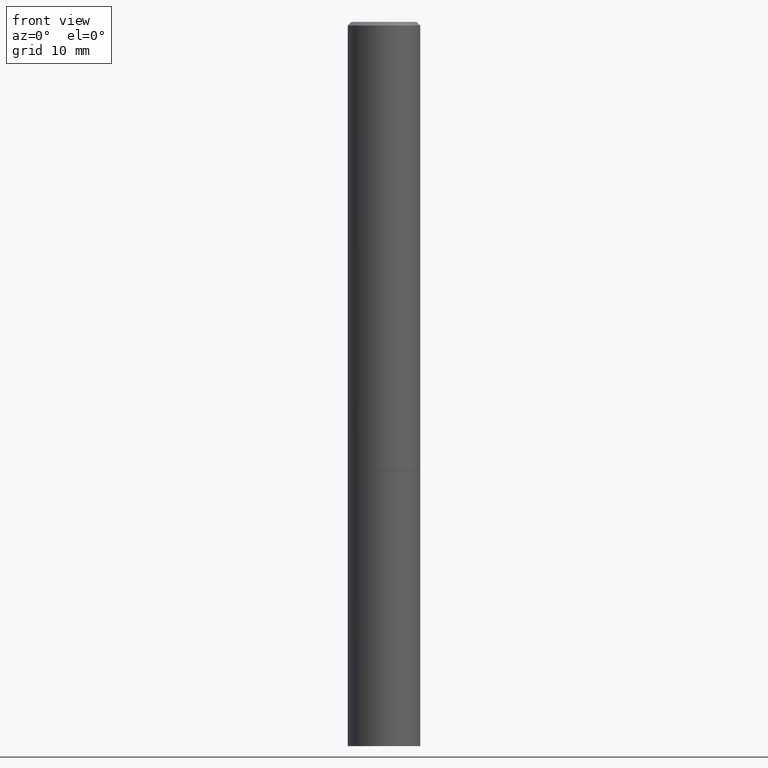
[diagram: clean part render]
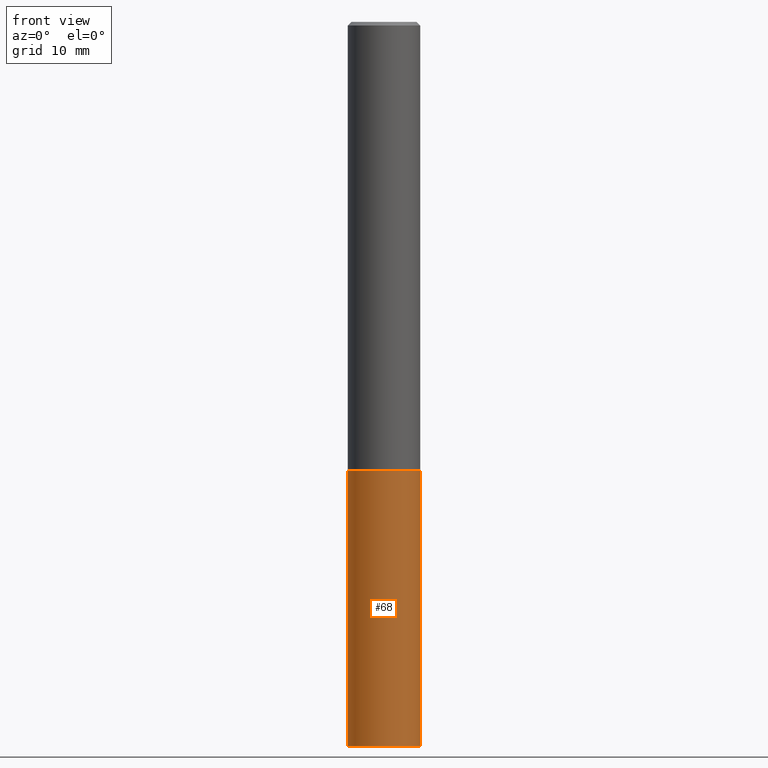
[diagram: same view with one face highlighted and labeled with its STEP entity id]
A machine part, front view. The second image highlights one B-rep face of the part: STEP entity #68.
In plain terms, the highlighted cylindrical surface (edge-blend (fillet) strip) has radius 5 mm, axis along (-0, 0, 1).
Its self-contained STEP definition (entity closure, byte-faithful):
#5 = DIRECTION ( 'NONE',  ( -2.445468806185136597E-29, 3.491481338843145583E-15, 1.000000000000000000 ) ) ;
#31 = VERTEX_POINT ( 'NONE', #258 ) ;
#42 = CARTESIAN_POINT ( 'NONE',  ( 9.627810689950883669E-29, -1.374596203102546341E-14, -3.937000000000000277 ) ) ;
#57 = CARTESIAN_POINT ( 'NONE',  ( 5.969144809017299038E-29, -8.522356799982232966E-15, -2.440900000000000070 ) ) ;
#60 = VERTEX_POINT ( 'NONE', #108 ) ;
#62 = ORIENTED_EDGE ( 'NONE', *, *, #213, .F. ) ;
#63 = DIRECTION ( 'NONE',  ( -2.445468806185136877E-29, 3.491481338843145188E-15, 1.000000000000000000 ) ) ;
#64 = VERTEX_POINT ( 'NONE', #192 ) ;
#68 = ADVANCED_FACE ( 'NONE', ( #80 ), #363, .T. ) ;
#69 = LINE ( 'NONE', #341, #137 ) ;
#72 = AXIS2_PLACEMENT_3D ( 'NONE', #57, #5, #322 ) ;
#80 = FACE_OUTER_BOUND ( 'NONE', #139, .T. ) ;
#94 = EDGE_CURVE ( 'NONE', #31, #60, #249, .T. ) ;
#98 = DIRECTION ( 'NONE',  ( -2.445468806185136597E-29, 3.491481338843145583E-15, 1.000000000000000000 ) ) ;
#105 = AXIS2_PLACEMENT_3D ( 'NONE', #136, #110, #167 ) ;
#108 = CARTESIAN_POINT ( 'NONE',  ( 0.1968500000000000250, -9.896953003084774574E-15, -2.440900000000000070 ) ) ;
#110 = DIRECTION ( 'NONE',  ( -2.445468806185136597E-29, 3.491481338843145583E-15, 1.000000000000000000 ) ) ;
#119 = DIRECTION ( 'NONE',  ( -2.445468806185136877E-29, 3.491481338843145188E-15, 1.000000000000000000 ) ) ;
#136 = CARTESIAN_POINT ( 'NONE',  ( 0.000000000000000000, 0.000000000000000000, 0.000000000000000000 ) ) ;
#137 = VECTOR ( 'NONE', #119, 39.37007874015748143 ) ;
#139 = EDGE_LOOP ( 'NONE', ( #62, #271, #319, #292 ) ) ;
#146 = EDGE_CURVE ( 'NONE', #153, #60, #264, .T. ) ;
#152 = CARTESIAN_POINT ( 'NONE',  ( 0.1968500000000000250, -1.374596203102541608E-15, 9.598753983154300858E-30 ) ) ;
#153 = VERTEX_POINT ( 'NONE', #348 ) ;
#167 = DIRECTION ( 'NONE',  ( 1.000000000000000000, -6.982962677686265922E-15, 4.876176775795935793E-29 ) ) ;
#192 = CARTESIAN_POINT ( 'NONE',  ( -0.1968500000000000250, -9.735456040160091980E-15, -3.937000000000000277 ) ) ;
#213 = EDGE_CURVE ( 'NONE', #64, #31, #69, .T. ) ;
#216 = DIRECTION ( 'NONE',  ( 1.000000000000000000, -6.982962677686267499E-15, 0.000000000000000000 ) ) ;
#246 = VECTOR ( 'NONE', #63, 39.37007874015748143 ) ;
#249 = CIRCLE ( 'NONE', #72, 0.1968500000000000250 ) ;
#258 = CARTESIAN_POINT ( 'NONE',  ( -0.1968500000000000250, -9.735456040160091980E-15, -2.440900000000000070 ) ) ;
#264 = LINE ( 'NONE', #152, #246 ) ;
#270 = AXIS2_PLACEMENT_3D ( 'NONE', #42, #98, #216 ) ;
#271 = ORIENTED_EDGE ( 'NONE', *, *, #356, .T. ) ;
#284 = CIRCLE ( 'NONE', #270, 0.1968500000000000250 ) ;
#292 = ORIENTED_EDGE ( 'NONE', *, *, #94, .F. ) ;
#319 = ORIENTED_EDGE ( 'NONE', *, *, #146, .T. ) ;
#322 = DIRECTION ( 'NONE',  ( 1.000000000000000000, -6.982962677686262766E-15, 0.000000000000000000 ) ) ;
#341 = CARTESIAN_POINT ( 'NONE',  ( -0.1968500000000000250, 1.398703375343757393E-15, -9.682923725166783677E-30 ) ) ;
#348 = CARTESIAN_POINT ( 'NONE',  ( 0.1968500000000000250, -1.512055823412800660E-14, -3.937000000000000277 ) ) ;
#356 = EDGE_CURVE ( 'NONE', #64, #153, #284, .T. ) ;
#363 = CYLINDRICAL_SURFACE ( 'NONE', #105, 0.1968500000000000250 ) ;